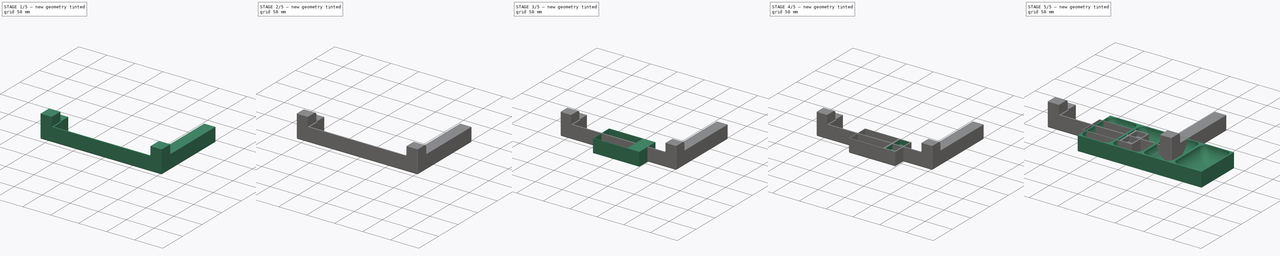
[diagram: build sequence overview — one tinted view per stage of 5, left to right]
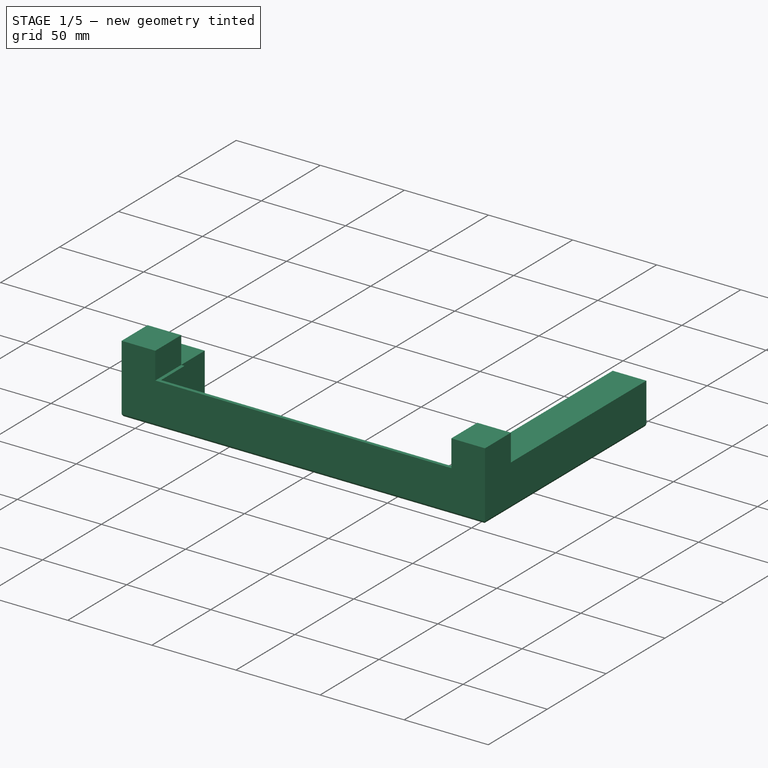
[diagram: stage 1 of 5 — iso view after this stage's code; geometry added in this stage tinted green]
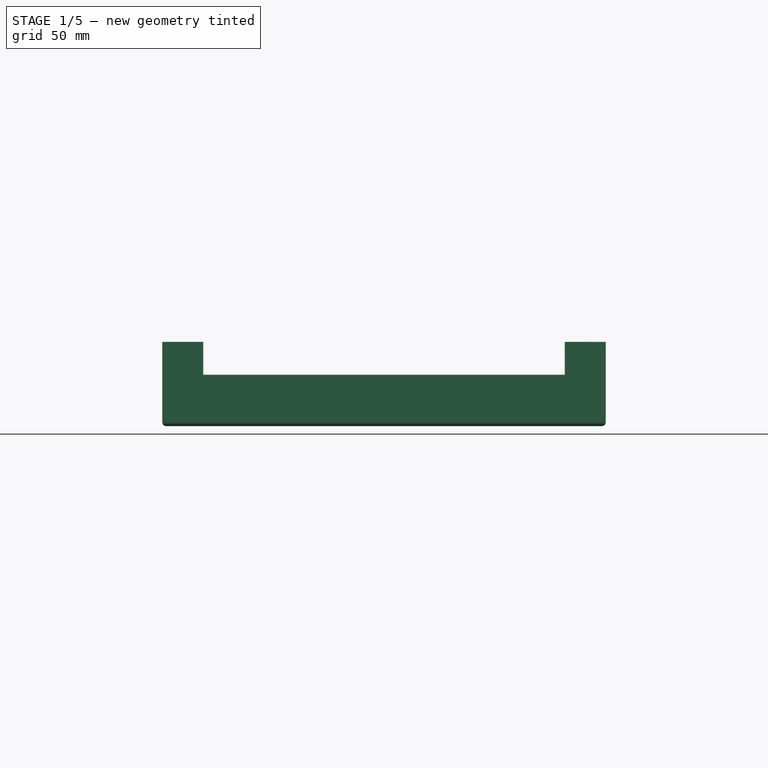
[diagram: stage 1 of 5 — front view after this stage's code; geometry added in this stage tinted green]
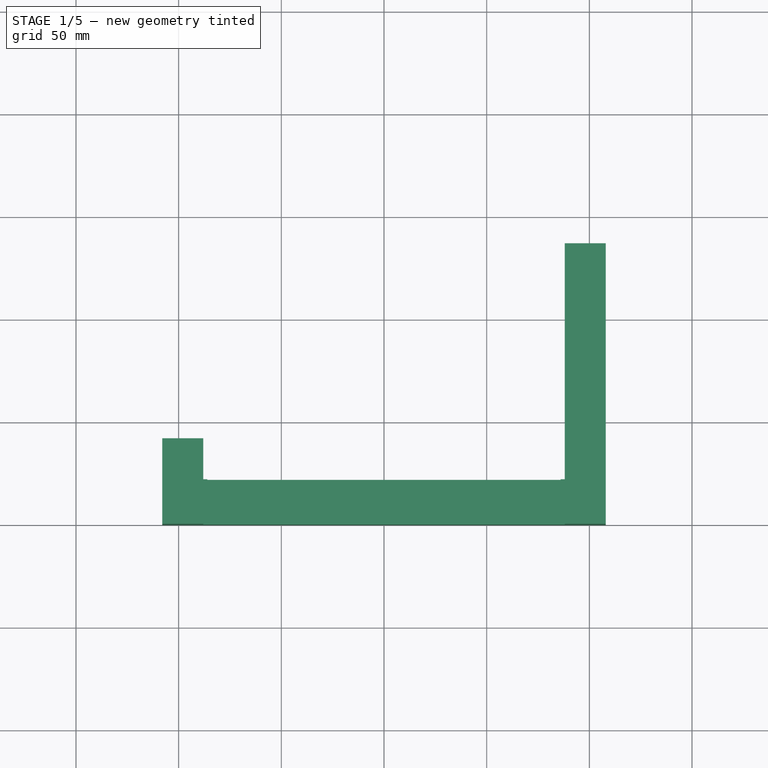
[diagram: stage 1 of 5 — top view after this stage's code; geometry added in this stage tinted green]
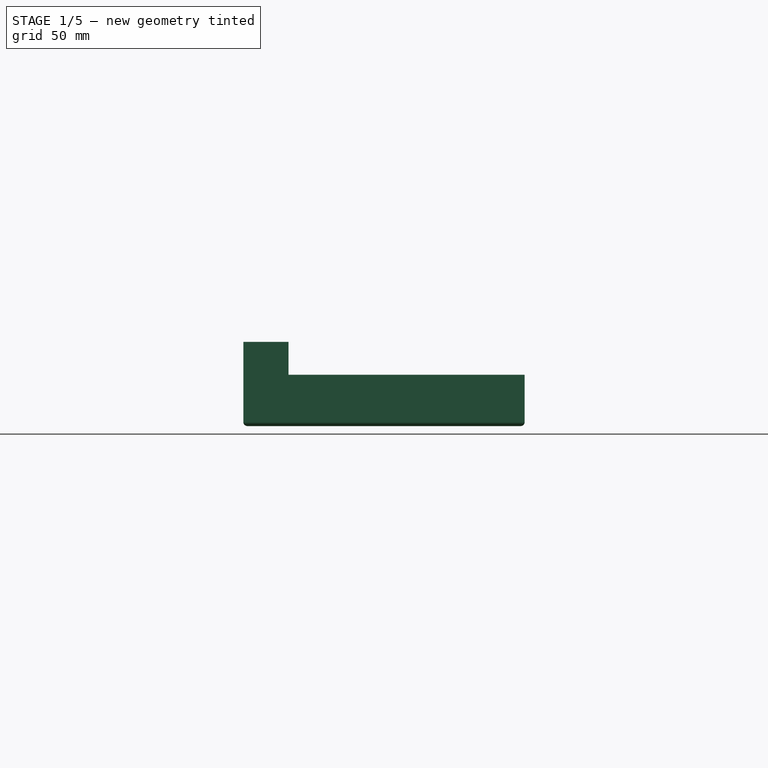
[diagram: stage 1 of 5 — right view after this stage's code; geometry added in this stage tinted green]
FCSTD DOCUMENT  (FreeCAD 0.19R24291 (Git))
Label: TammanyHall
License: All rights reserved
LicenseURL: http://en.wikipedia.org/wiki/All_rights_reserved
objects: Sketcher::SketchObject×11, PartDesign::Fillet×8, PartDesign::Pad×7, PartDesign::Plane×7, PartDesign::Pocket×4, PartDesign::Body×4, PartDesign::Thickness×2, Spreadsheet::Sheet×1, PartDesign::LinearPattern×1
note: 65 computed .brp shape members not serialized (recipe doc carries the construction recipe); baked Part::Feature solids carry a one-line shape summary decoded from their .brp

FEATURE [Sketcher::SketchObject] Sketch003
  FullyConstrained = true
  MapMode = 5
  Support = -> [XY_Plane002]
  expr: Constraints[6] = Spreadsheet.card_height
  expr: Constraints[7] = Spreadsheet.card_width
  sketch-geometry (4):
    g0: LineSegment StartX=-46 StartY=30.5 StartZ=0 EndX=46 EndY=30.5 EndZ=0
    g1: LineSegment StartX=46 StartY=30.5 StartZ=0 EndX=46 EndY=-30.5 EndZ=0
    g2: LineSegment StartX=46 StartY=-30.5 StartZ=0 EndX=-46 EndY=-30.5 EndZ=0
    g3: LineSegment StartX=-46 StartY=-30.5 StartZ=0 EndX=-46 EndY=30.5 EndZ=0
  constraints (10):
    c: Coincident(g0,g1)
    c: Coincident(g1,g2)
    c: Coincident(g2,g3)
    c: Coincident(g3,g0)
    c: Horizontal(g0)
    c: Vertical(g1)
    c: DistanceX(g0,g0) = 92
    c: DistanceY(g3,g3) = 61
    c: Symmetric(g2,g1,g-2)
    c: Symmetric(g0,g2,g-1)
FEATURE [PartDesign::Pad] Pad002
  Direction = (1,1,1)
  Length = 25
  Length2 = 100
  Profile = -> Sketch003
  Type = 0
  expr: Length = Spreadsheet.faction_height
FEATURE [PartDesign::Thickness] Thickness001
  Base = -> Pad002 [Face6]
  BaseFeature = -> Pad002
  Intersection = false
  Join = 0
  Mode = 0
  SupportTransform = false
  Value = 1
FEATURE [PartDesign::Plane] DatumPlane001
  Length = 107.711
  MapMode = 5
  Placement = pos=(0,30.5,0) rot=(1,0,0;1.5708rad)
  ResizeMode = 0
  Support = -> [Thickness001]
  Width = 63.7113
FEATURE [Sketcher::SketchObject] Sketch004
  FullyConstrained = true
  MapMode = 5
  Placement = pos=(0,30.5,0) rot=(1,0,0;1.5708rad)
  Support = -> [DatumPlane001]
  expr: Constraints[43] = Spreadsheet.card_height
  expr: Constraints[44] = 10
  expr: Constraints[66] = Spreadsheet.card_box_height - Spreadsheet.all_cards_thickness
  sketch-geometry (24):
    g0: LineSegment StartX=46 StartY=0 StartZ=0 EndX=-46 EndY=0 EndZ=0
    g1: LineSegment StartX=-46 StartY=0 StartZ=0 EndX=-46 EndY=16 EndZ=0
    g2: LineSegment StartX=-46 StartY=16 StartZ=0 EndX=-41 EndY=16 EndZ=0
    g3: LineSegment StartX=-41 StartY=16 StartZ=0 EndX=-41 EndY=6 EndZ=0
    g4: LineSegment StartX=-41 StartY=6 StartZ=0 EndX=-35 EndY=6 EndZ=0
    g5: LineSegment StartX=-35 StartY=6 StartZ=0 EndX=-35 EndY=16 EndZ=0
    g6: LineSegment StartX=-35 StartY=16 StartZ=0 EndX=-29 EndY=16 EndZ=0
    g7: LineSegment StartX=-29 StartY=16 StartZ=0 EndX=-29 EndY=6 EndZ=0
    g8: LineSegment StartX=-29 StartY=6 StartZ=0 EndX=-23 EndY=6 EndZ=0
    g9: LineSegment StartX=-23 StartY=6 StartZ=0 EndX=-23 EndY=16 EndZ=0
    g10: LineSegment StartX=-23 StartY=16 StartZ=0 EndX=-17 EndY=16 EndZ=0
    g11: LineSegment StartX=-17 StartY=16 StartZ=0 EndX=-17 EndY=6 EndZ=0
    g12: LineSegment StartX=-17 StartY=6 StartZ=0 EndX=-11 EndY=6 EndZ=0
    g13: LineSegment StartX=-11 StartY=6 StartZ=0 EndX=-11 EndY=16 EndZ=0
    g14: LineSegment StartX=-11 StartY=16 StartZ=0 EndX=-5 EndY=16 EndZ=0
    g15: LineSegment StartX=-5 StartY=16 StartZ=0 EndX=-5 EndY=6 EndZ=0
    g16: LineSegment StartX=-5 StartY=6 StartZ=0 EndX=1 EndY=6 EndZ=0
    g17: LineSegment StartX=1 StartY=6 StartZ=0 EndX=1 EndY=16 EndZ=0
    g18: LineSegment StartX=1 StartY=16 StartZ=0 EndX=7 EndY=16 EndZ=0
    g19: LineSegment StartX=7 StartY=16 StartZ=0 EndX=7 EndY=6 EndZ=0
    g20: LineSegment StartX=7 StartY=6 StartZ=0 EndX=13 EndY=6 EndZ=0
    g21: LineSegment StartX=13 StartY=6 StartZ=0 EndX=13 EndY=16 EndZ=0
    g22: LineSegment StartX=13 StartY=16 StartZ=0 EndX=18.2872 EndY=16 EndZ=0
    g23: LineSegment StartX=18.2872 StartY=16 StartZ=0 EndX=46 EndY=0 EndZ=0
  constraints (71):
    c: PointOnObject(g0,g-1)
    c: Coincident(g0,g1)
    c: Vertical(g1)
    c: Coincident(g1,g2)
    c: Horizontal(g2)
    c: Coincident(g2,g3)
    c: Vertical(g3)
    c: Coincident(g3,g4)
    c: Coincident(g4,g5)
    c: Vertical(g5)
    c: Coincident(g5,g6)
    c: Horizontal(g6)
    c: Coincident(g6,g7)
    c: Vertical(g7)
    c: Coincident(g7,g8)
    c: Coincident(g8,g9)
    c: Vertical(g9)
    c: Coincident(g9,g10)
    c: Horizontal(g10)
    c: Coincident(g10,g11)
    c: Vertical(g11)
    c: Coincident(g11,g12)
    c: Horizontal(g12)
    c: Coincident(g12,g13)
    c: Vertical(g13)
    c: Coincident(g13,g14)
    c: Horizontal(g14)
    c: Coincident(g14,g15)
    c: Vertical(g15)
    c: Coincident(g15,g16)
    c: Horizontal(g16)
    c: Coincident(g16,g17)
    c: Vertical(g17)
    c: Coincident(g17,g18)
    c: Coincident(g18,g19)
    c: Coincident(g19,g20)
    c: Horizontal(g20)
    c: Coincident(g20,g21)
    c: Vertical(g21)
    c: Coincident(g21,g22)
    c: Horizontal(g22)
    c: Coincident(g22,g23)
    c: Coincident(g23,g0)
    c: DistanceX(g0,g0) = 92
    c: DistanceY(g3,g3) = 10
    c: Equal(g3,g5)
    c: Equal(g5,g7)
    c: Equal(g7,g9)
    c: Equal(g9,g11)
    c: Equal(g11,g13)
    c: Equal(g13,g15)
    c: Equal(g15,g17)
    c: Equal(g17,g19)
    c: Equal(g19,g21)
    c: DistanceX(g4,g4) = 6
    c: Equal(g6,g8)
    c: Equal(g8,g10)
    c: Equal(g10,g12)
    c: Equal(g12,g14)
    c: Equal(g14,g16)
    c: Equal(g16,g18)
    c: Equal(g18,g20)
    c: Vertical(g19)
    c: Horizontal(g18)
    c: Horizontal(g4)
    c: Horizontal(g8)
    c: DistanceY(g0,g1) = 16
    c: DistanceX(g2,g2) = 5
    c: Symmetric(g0,g0,g-2)
    c: Angle(g23,g0) = 0.523599
    c: Equal(g6,g4)
FEATURE [PartDesign::Pad] Pad003
  BaseFeature = -> Thickness001
  Direction = (1,1,1)
  Length = 61
  Length2 = 100
  Profile = -> Sketch004
  Type = 0
  expr: Length = Spreadsheet.card_width
FEATURE [Sketcher::SketchObject] Sketch006
  FullyConstrained = true
  MapMode = 5
  Support = -> [XY_Plane003]
  expr: Constraints[22] = Spreadsheet.board_lock_length
  expr: Constraints[16] = Spreadsheet.board_lock_short
  expr: Constraints[17] = Spreadsheet.box_width
  expr: Constraints[19] = Spreadsheet.board_lock_short - Spreadsheet.board_remainder
  sketch-geometry (8):
    g0: LineSegment StartX=-108 StartY=42 StartZ=0 EndX=-88 EndY=42 EndZ=0
    g1: LineSegment StartX=-88 StartY=42 StartZ=0 EndX=-88 EndY=22 EndZ=0
    g2: LineSegment StartX=-88 StartY=22 StartZ=0 EndX=88 EndY=22 EndZ=0
    g3: LineSegment StartX=88 StartY=22 StartZ=0 EndX=88 EndY=137 EndZ=0
    g4: LineSegment StartX=88 StartY=137 StartZ=0 EndX=108 EndY=137 EndZ=0
    g5: LineSegment StartX=108 StartY=137 StartZ=0 EndX=108 EndY=0 EndZ=0
    g6: LineSegment StartX=108 StartY=0 StartZ=0 EndX=-108 EndY=0 EndZ=0
    g7: LineSegment StartX=-108 StartY=0 StartZ=0 EndX=-108 EndY=42 EndZ=0
  constraints (23):
    c: Horizontal(g0)
    c: Coincident(g0,g1)
    c: Vertical(g1)
    c: Coincident(g1,g2)
    c: Horizontal(g2)
    c: Coincident(g2,g3)
    c: Coincident(g3,g4)
    c: Horizontal(g4)
    c: Coincident(g4,g5)
    c: Vertical(g5)
    c: Coincident(g5,g6)
    c: Coincident(g6,g7)
    c: Coincident(g7,g0)
    c: Vertical(g7)
    c: Vertical(g3)
    c: Equal(g0,g4)
    c: DistanceY(g7,g7) = 42
    c: DistanceX(g6,g6) = 216
    c: DistanceX(g0,g0) = 20
    c: DistanceY(g1,g1) = 20
    c: Symmetric(g6,g5,g-2)
    c: PointOnObject(g-1,g6)
    c: DistanceY(g5,g5) = 137
FEATURE [PartDesign::Pad] Pad004
  Direction = (1,1,1)
  Length = 25
  Length2 = 100
  Profile = -> Sketch006
  Type = 0
  expr: Length = Spreadsheet.card_box_height
FEATURE [PartDesign::Plane] DatumPlane004
  Length = 253.412
  MapMode = 5
  Placement = pos=(0,0,25) rot=(0,0,1;0rad)
  ResizeMode = 0
  Support = -> [Pad004]
  Width = 199.412
FEATURE [Sketcher::SketchObject] Sketch007
  FullyConstrained = true
  MapMode = 5
  Placement = pos=(0,0,25) rot=(0,0,1;0rad)
  Support = -> [DatumPlane004]
  expr: Constraints[20] = Spreadsheet.box_width
  expr: Constraints[17] = Spreadsheet.board_remainder
  sketch-geometry (8):
    g0: LineSegment StartX=-108 StartY=22 StartZ=0 EndX=-88 EndY=22 EndZ=0
    g1: LineSegment StartX=-88 StartY=22 StartZ=0 EndX=-88 EndY=0 EndZ=0
    g2: LineSegment StartX=-88 StartY=0 StartZ=0 EndX=-108 EndY=0 EndZ=0
    g3: LineSegment StartX=-108 StartY=0 StartZ=0 EndX=-108 EndY=22 EndZ=0
    g4: LineSegment StartX=88 StartY=22 StartZ=0 EndX=108 EndY=22 EndZ=0
    g5: LineSegment StartX=108 StartY=22 StartZ=0 EndX=108 EndY=0 EndZ=0
    g6: LineSegment StartX=108 StartY=0 StartZ=0 EndX=88 EndY=0 EndZ=0
    g7: LineSegment StartX=88 StartY=0 StartZ=0 EndX=88 EndY=22 EndZ=0
  constraints (23):
    c: Coincident(g0,g1)
    c: Coincident(g1,g2)
    c: Coincident(g2,g3)
    c: Coincident(g3,g0)
    c: Horizontal(g0)
    c: Horizontal(g2)
    c: Vertical(g1)
    c: Vertical(g3)
    c: Coincident(g4,g5)
    c: Coincident(g5,g6)
    c: Coincident(g6,g7)
    c: Coincident(g7,g4)
    c: Horizontal(g4)
    c: Horizontal(g6)
    c: Vertical(g5)
    c: Vertical(g7)
    c: PointOnObject(g5,g-1)
    c: DistanceY(g3,g3) = 22
    c: DistanceX(g2,g2) = 20
    c: Symmetric(g6,g1,g-2)
    c: DistanceX(g2,g5) = 216
    c: Equal(g4,g0)
    c: Equal(g1,g7)
FEATURE [PartDesign::Pad] Pad005
  BaseFeature = -> Pad004
  Direction = (1,1,1)
  Length = 16
  Length2 = 100
  Profile = -> Sketch007
  Type = 0
  expr: Length = Spreadsheet.board_width
FEATURE [PartDesign::Fillet] Fillet003
  Base = -> Pad005 [Face4]
  BaseFeature = -> Pad005
  Radius = 2
  SupportTransform = false
FEATURE [PartDesign::Body] Body001  label="PlayerTray"
  Group = -> [Sketch002,Pad001,Thickness,Fillet001,DatumPlane006,Sketch008,Pad006,DatumPlane007,Sketch009,Pocket002,Fillet005,Fillet006]
  Origin = -> Origin001
  Tip = -> Fillet006
FEATURE [PartDesign::Plane] DatumPlane008
  Length = 253.412
  MapMode = 5
  Placement = pos=(0,0,25) rot=(0,0,1;0rad)
  ResizeMode = 0
  Support = -> [Fillet003]
  Width = 199.412
FEATURE [Sketcher::SketchObject] Sketch010
  FullyConstrained = true
  MapMode = 5
  Placement = pos=(0,0,25) rot=(0,0,1;0rad)
  Support = -> [DatumPlane008]
  expr: Constraints[10] = Spreadsheet.board_remainder
  expr: Constraints[8] = Spreadsheet.box_width - 2 * Spreadsheet.board_remainder
  sketch-geometry (4):
    g0: LineSegment StartX=-86 StartY=2 StartZ=0 EndX=86 EndY=2 EndZ=0
    g1: LineSegment StartX=86 StartY=2 StartZ=0 EndX=86 EndY=22 EndZ=0
    g2: LineSegment StartX=86 StartY=22 StartZ=0 EndX=-86 EndY=22 EndZ=0
    g3: LineSegment StartX=-86 StartY=22 StartZ=0 EndX=-86 EndY=2 EndZ=0
  constraints (11):
    c: Coincident(g0,g1)
    c: Coincident(g1,g2)
    c: Coincident(g2,g3)
    c: Coincident(g3,g0)
    c: Horizontal(g2)
    c: Vertical(g1)
    c: Vertical(g3)
    c: Symmetric(g0,g0,g-2)
    c: DistanceX(g0,g0) = 172
    c: DistanceY(g3,g3) = 20
    c: DistanceY(g-1,g2) = 22
FEATURE [PartDesign::Pocket] Pocket003
  BaseFeature = -> Fillet003
  Length = 16
  Length2 = 100
  Profile = -> Sketch010
  Type = 0
  expr: Length = Spreadsheet.board_width
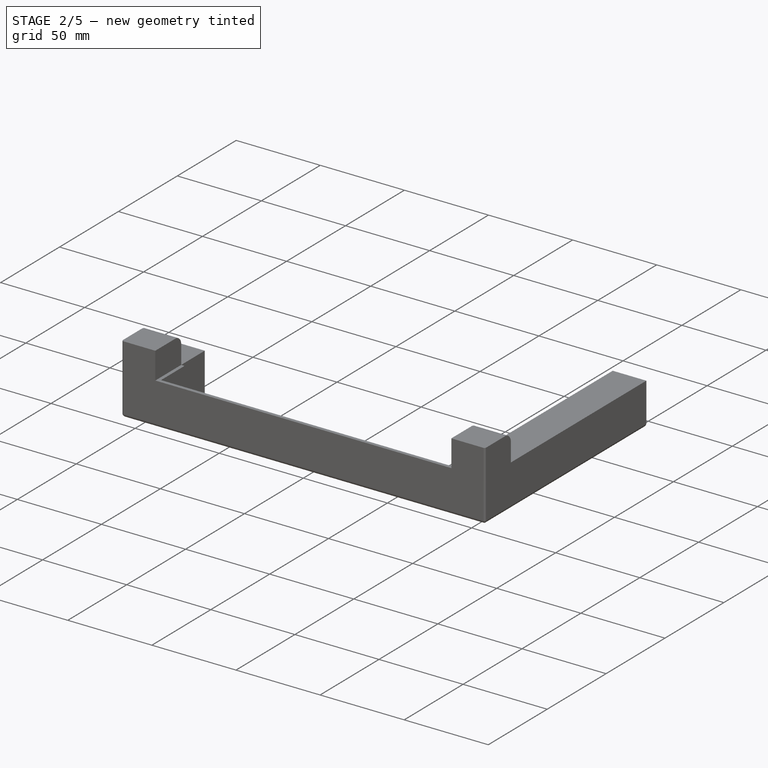
[diagram: stage 2 of 5 — iso view after this stage's code; geometry added in this stage tinted green]
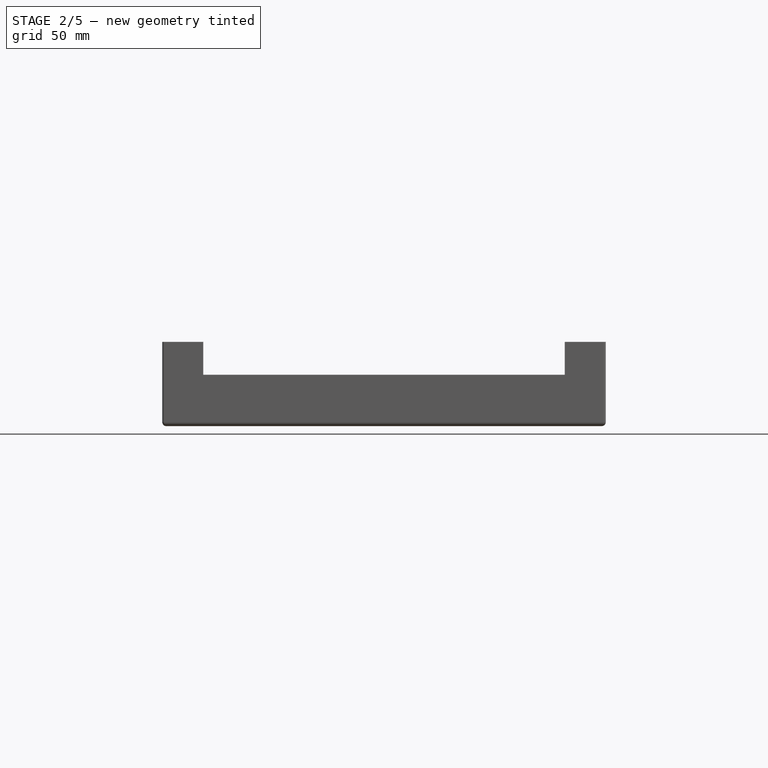
[diagram: stage 2 of 5 — front view after this stage's code; geometry added in this stage tinted green]
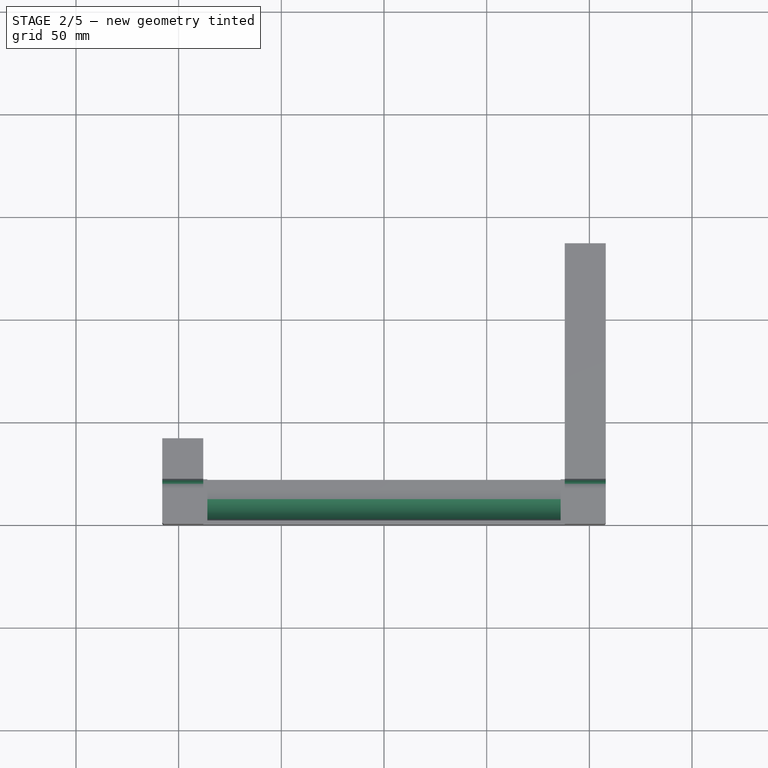
[diagram: stage 2 of 5 — top view after this stage's code; geometry added in this stage tinted green]
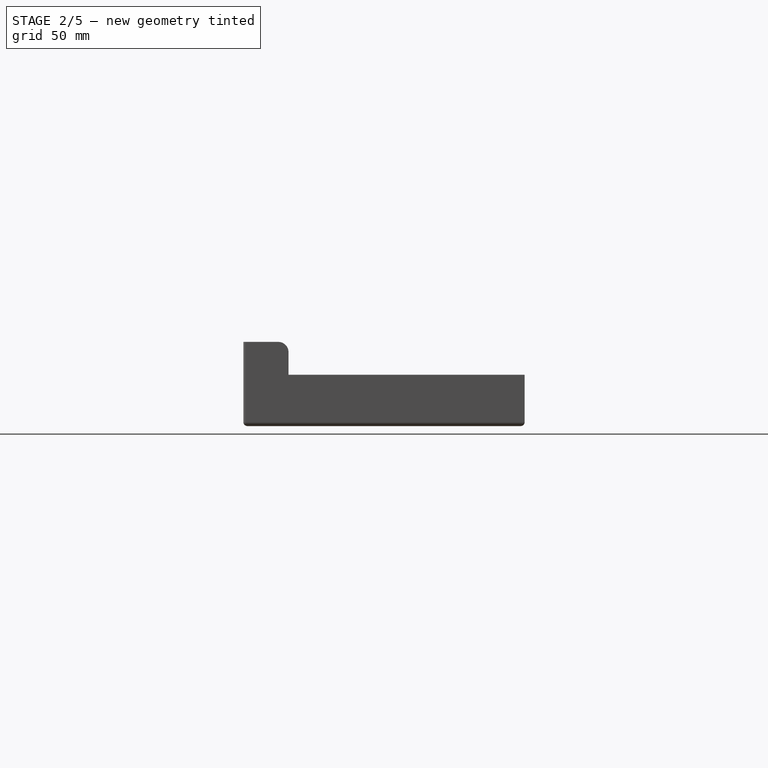
[diagram: stage 2 of 5 — right view after this stage's code; geometry added in this stage tinted green]
FEATURE [PartDesign::Fillet] Fillet007
  Base = -> Pocket003 [Edge67]
  BaseFeature = -> Pocket003
  Radius = 15
  SupportTransform = false
FEATURE [PartDesign::Fillet] Fillet008
  Base = -> Fillet007 [Edge45,Edge64]
  BaseFeature = -> Fillet007
  Radius = 5
  SupportTransform = false
FEATURE [PartDesign::Fillet] Fillet009
  Base = -> Fillet008 [Edge59,Edge26,Edge20,Edge29]
  BaseFeature = -> Fillet008
  Radius = 1
  SupportTransform = false
FEATURE [PartDesign::Body] Body003  label="BoardFrame"
  Group = -> [Sketch006,Pad004,DatumPlane004,Sketch007,Pad005,Fillet003,DatumPlane008,Sketch010,Pocket003,Fillet007,Fillet008,Fillet009]
  Origin = -> Origin003
  Tip = -> Fillet009
FEATURE [PartDesign::Body] Body002  label="OfficeCardTray"
  Group = -> [Sketch003,Pad002,Thickness001,DatumPlane001,Sketch004,Pad003,Sketch005,Pocket001,DatumPlane003]
  Origin = -> Origin002
  Tip = -> Pocket001
FEATURE [Sketcher::SketchObject] Sketch005
  FullyConstrained = true
  MapMode = 5
  Placement = pos=(-46,0,0) rot=(0.57735,0.57735,0.57735;2.0944rad)
  Support = -> [DatumPlane003]
  expr: Constraints[8] = Spreadsheet.card_box_height
  expr: Constraints[9] = Spreadsheet.card_width - 20
  sketch-geometry (4):
    g0: LineSegment StartX=-20.5 StartY=0 StartZ=0 EndX=20.5 EndY=0 EndZ=0
    g1: LineSegment StartX=20.5 StartY=0 StartZ=0 EndX=20.5 EndY=25 EndZ=0
    g2: LineSegment StartX=20.5 StartY=25 StartZ=0 EndX=-20.5 EndY=25 EndZ=0
    g3: LineSegment StartX=-20.5 StartY=25 StartZ=0 EndX=-20.5 EndY=0 EndZ=0
  constraints (11):
    c: Coincident(g0,g1)
    c: Coincident(g1,g2)
    c: Coincident(g2,g3)
    c: Coincident(g3,g0)
    c: Horizontal(g2)
    c: Vertical(g1)
    c: Vertical(g3)
    c: PointOnObject(g0,g-1)
    c: DistanceY(g3,g3) = 25
    c: DistanceX(g2,g2) = 41
    c: Symmetric(g0,g0,g-2)
FEATURE [PartDesign::Pocket] Pocket001
  BaseFeature = -> Pad003
  Length = 62
  Length2 = 100
  Profile = -> Sketch005
  Reversed = true
  Type = 0
  expr: Length = Spreadsheet.card_height - 30
FEATURE [PartDesign::Plane] DatumPlane003
  Length = 74.225
  MapMode = 5
  Placement = pos=(-46,0,0) rot=(0.57735,0.57735,0.57735;2.0944rad)
  ResizeMode = 0
  Support = -> [Pocket001]
  Width = 61.225
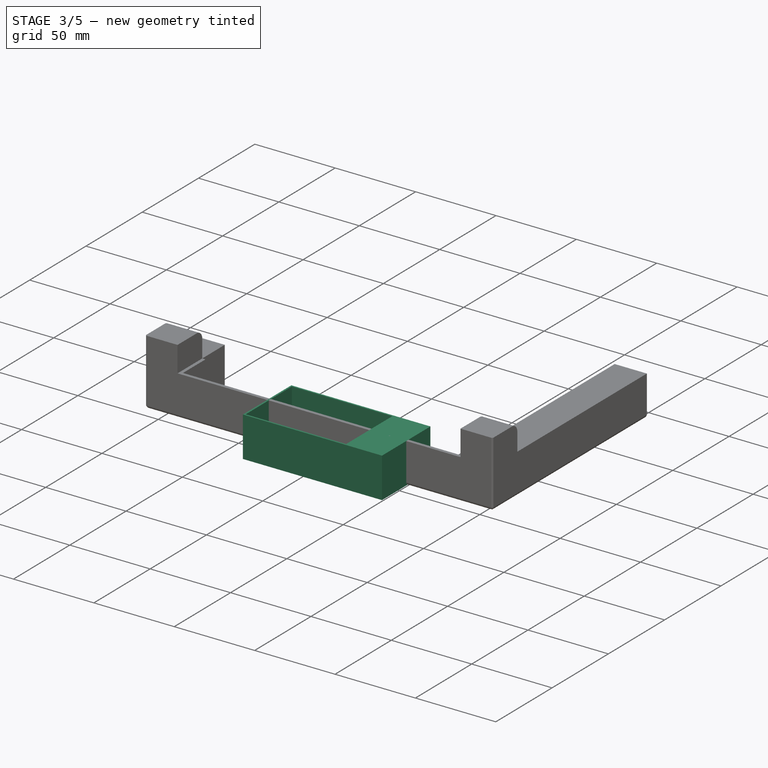
[diagram: stage 3 of 5 — iso view after this stage's code; geometry added in this stage tinted green]
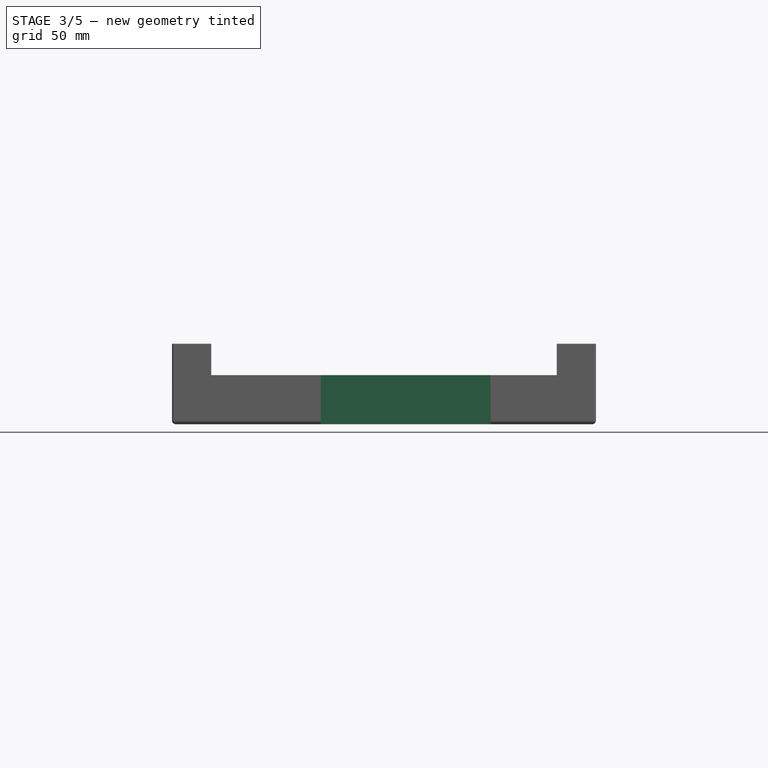
[diagram: stage 3 of 5 — front view after this stage's code; geometry added in this stage tinted green]
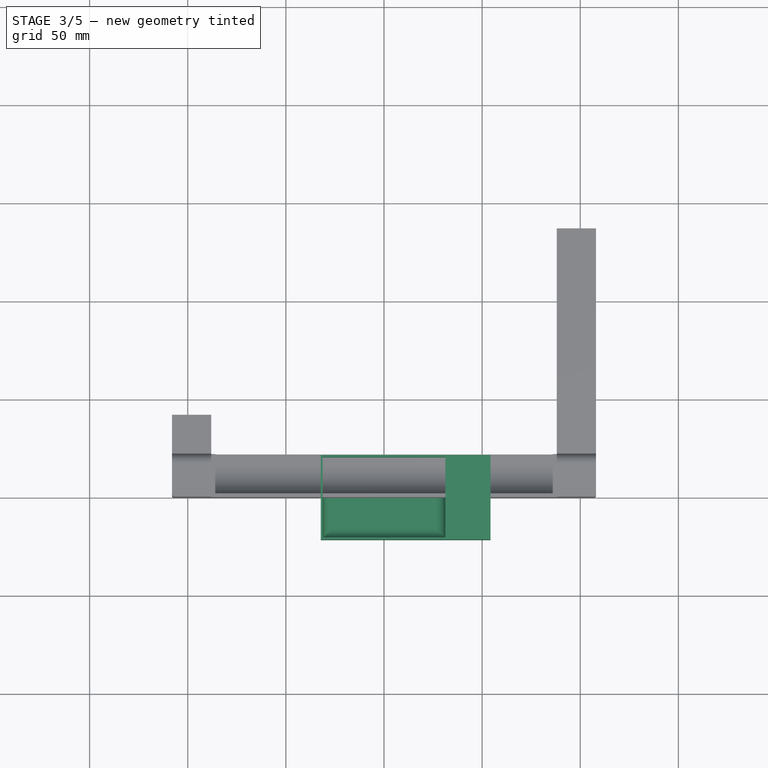
[diagram: stage 3 of 5 — top view after this stage's code; geometry added in this stage tinted green]
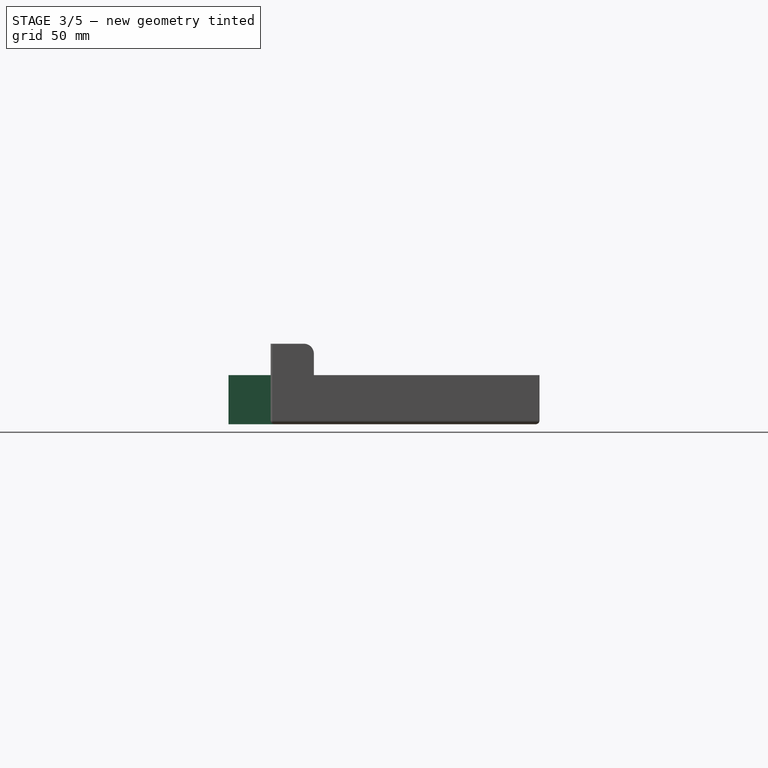
[diagram: stage 3 of 5 — right view after this stage's code; geometry added in this stage tinted green]
FEATURE [PartDesign::Body] Body  label="FactionTrays"
  Group = -> [Sketch,Pad,DatumPlane,Sketch001,Pocket,Fillet,LinearPattern]
  Origin = -> Origin
  Tip = -> LinearPattern
FEATURE [Sketcher::SketchObject] Sketch002
  FullyConstrained = true
  MapMode = 5
  Support = -> [XY_Plane001]
  expr: Constraints[6] = Spreadsheet.player_width * 1.5
  expr: Constraints[9] = Spreadsheet.player_width
  sketch-geometry (4):
    g0: LineSegment StartX=-32.25 StartY=21.5 StartZ=0 EndX=32.25 EndY=21.5 EndZ=0
    g1: LineSegment StartX=32.25 StartY=21.5 StartZ=0 EndX=32.25 EndY=-21.5 EndZ=0
    g2: LineSegment StartX=32.25 StartY=-21.5 StartZ=0 EndX=-32.25 EndY=-21.5 EndZ=0
    g3: LineSegment StartX=-32.25 StartY=-21.5 StartZ=0 EndX=-32.25 EndY=21.5 EndZ=0
  constraints (10):
    c: Coincident(g0,g1)
    c: Coincident(g1,g2)
    c: Coincident(g2,g3)
    c: Coincident(g3,g0)
    c: Horizontal(g2)
    c: Vertical(g1)
    c: DistanceX(g0,g0) = 64.5
    c: Symmetric(g0,g0,g-2)
    c: Symmetric(g0,g2,g-1)
    c: DistanceY(g3,g3) = 43
FEATURE [PartDesign::Pad] Pad001
  Direction = (1,1,1)
  Length = 25
  Length2 = 100
  Profile = -> Sketch002
  Type = 0
  expr: Length = Spreadsheet.player_height
FEATURE [PartDesign::Thickness] Thickness
  Base = -> Pad001 [Face6]
  BaseFeature = -> Pad001
  Intersection = false
  Join = 0
  Mode = 0
  Reversed = true
  SupportTransform = false
  Value = 1
FEATURE [PartDesign::Fillet] Fillet001
  Base = -> Thickness [Face11]
  BaseFeature = -> Thickness
  Radius = 5
  SupportTransform = false
FEATURE [PartDesign::Plane] DatumPlane006
  Length = 60
  MapMode = 5
  Placement = pos=(32.25,0,0) rot=(0.57735,0.57735,0.57735;2.0944rad)
  ResizeMode = 0
  Support = -> [Fillet001]
  Width = 60
FEATURE [Sketcher::SketchObject] Sketch008
  FullyConstrained = true
  MapMode = 5
  Placement = pos=(32.25,0,0) rot=(0.57735,0.57735,0.57735;2.0944rad)
  Support = -> [DatumPlane006]
  expr: Constraints[9] = Spreadsheet.player_height
  expr: Constraints[8] = Spreadsheet.player_width
  sketch-geometry (4):
    g0: LineSegment StartX=-21.5 StartY=25 StartZ=0 EndX=21.5 EndY=25 EndZ=0
    g1: LineSegment StartX=21.5 StartY=25 StartZ=0 EndX=21.5 EndY=0 EndZ=0
    g2: LineSegment StartX=21.5 StartY=0 StartZ=0 EndX=-21.5 EndY=0 EndZ=0
    g3: LineSegment StartX=-21.5 StartY=0 StartZ=0 EndX=-21.5 EndY=25 EndZ=0
  constraints (11):
    c: Coincident(g0,g1)
    c: Coincident(g1,g2)
    c: Coincident(g2,g3)
    c: Coincident(g3,g0)
    c: Horizontal(g0)
    c: Vertical(g1)
    c: Vertical(g3)
    c: PointOnObject(g1,g-1)
    c: DistanceX(g0,g0) = 43
    c: DistanceY(g3,g3) = 25
    c: Symmetric(g2,g1,g-2)
FEATURE [PartDesign::Pad] Pad006
  BaseFeature = -> Fillet001
  Direction = (1,1,1)
  Length = 22
  Length2 = 100
  Profile = -> Sketch008
  Type = 0
  expr: Length = Spreadsheet.slander_box_width + 2 * Spreadsheet.padding
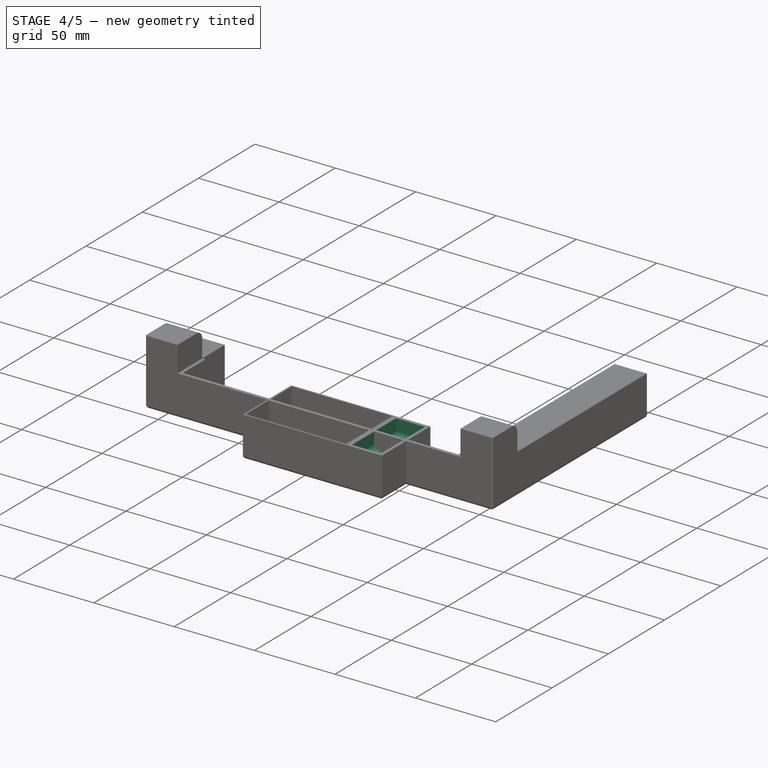
[diagram: stage 4 of 5 — iso view after this stage's code; geometry added in this stage tinted green]
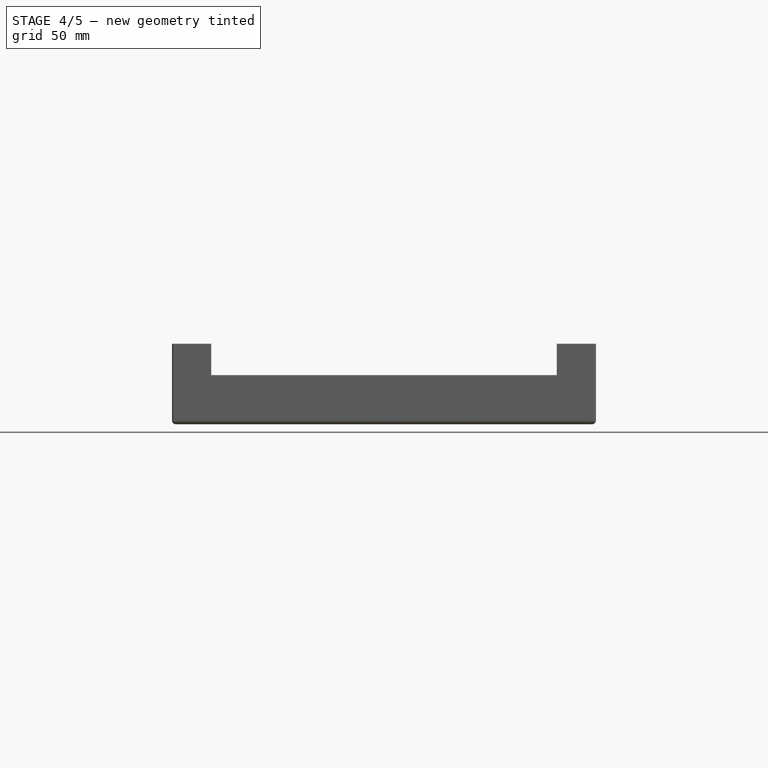
[diagram: stage 4 of 5 — front view after this stage's code; geometry added in this stage tinted green]
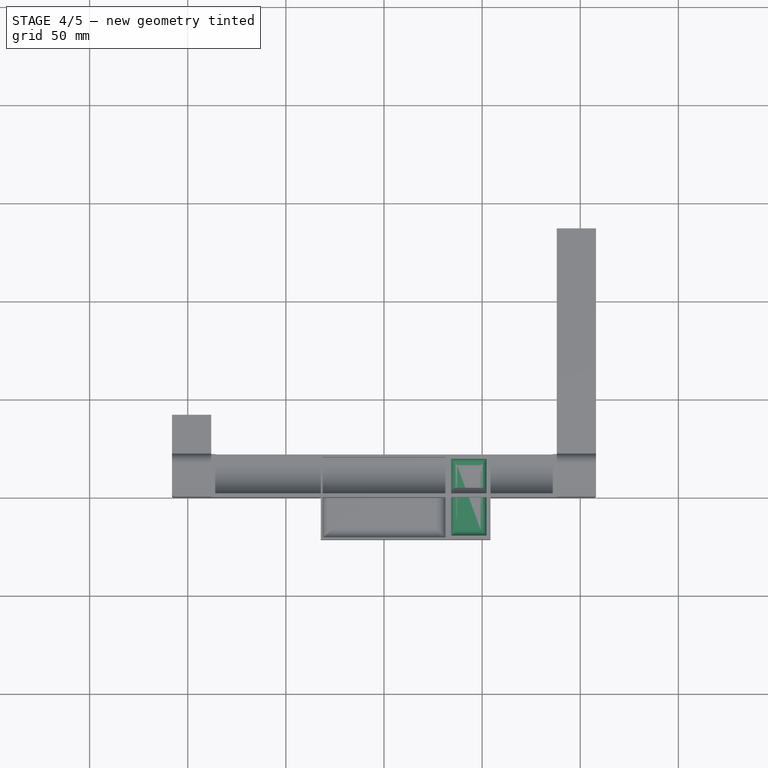
[diagram: stage 4 of 5 — top view after this stage's code; geometry added in this stage tinted green]
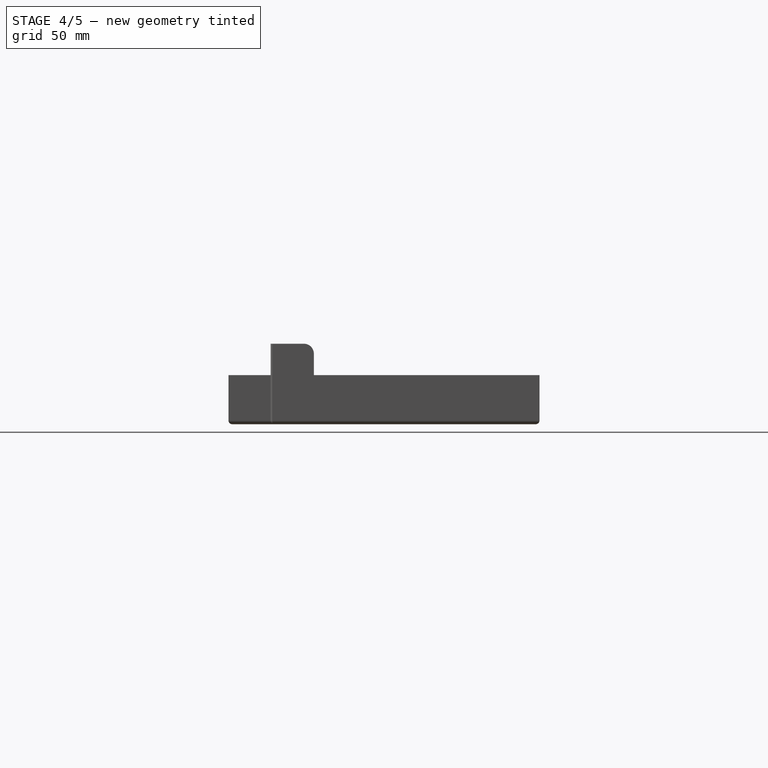
[diagram: stage 4 of 5 — right view after this stage's code; geometry added in this stage tinted green]
FEATURE [PartDesign::Plane] DatumPlane007
  Length = 99.6529
  MapMode = 5
  Placement = pos=(0,0,25) rot=(0,0,1;0rad)
  ResizeMode = 0
  Support = -> [Pad006]
  Width = 63.1529
FEATURE [Sketcher::SketchObject] Sketch009
  FullyConstrained = true
  MapMode = 5
  Placement = pos=(0,0,25) rot=(0,0,1;0rad)
  Support = -> [DatumPlane007]
  expr: Constraints[9] = 1.5 * Spreadsheet.player_width / 2 + Spreadsheet.padding
  expr: Constraints[8] = Spreadsheet.player_width - 2 * Spreadsheet.padding
  expr: Constraints[7] = Spreadsheet.slander_box_width
  sketch-geometry (4):
    g0: LineSegment StartX=34.25 StartY=19.5 StartZ=0 EndX=52.25 EndY=19.5 EndZ=0
    g1: LineSegment StartX=52.25 StartY=19.5 StartZ=0 EndX=52.25 EndY=-19.5 EndZ=0
    g2: LineSegment StartX=52.25 StartY=-19.5 StartZ=0 EndX=34.25 EndY=-19.5 EndZ=0
    g3: LineSegment StartX=34.25 StartY=-19.5 StartZ=0 EndX=34.25 EndY=19.5 EndZ=0
  constraints (11):
    c: Coincident(g0,g1)
    c: Coincident(g1,g2)
    c: Coincident(g2,g3)
    c: Coincident(g3,g0)
    c: Horizontal(g0)
    c: Horizontal(g2)
    c: Vertical(g1)
    c: DistanceX(g0,g0) = 18
    c: DistanceY(g3,g3) = 39
    c: DistanceX(g-1,g2) = 34.25
    c: Symmetric(g2,g0,g-1)
FEATURE [PartDesign::Pocket] Pocket002
  BaseFeature = -> Pad006
  Length = 10
  Length2 = 100
  Profile = -> Sketch009
  Type = 0
  expr: Length = Spreadsheet.slander_box_depth
FEATURE [PartDesign::Fillet] Fillet005
  Base = -> Pocket002 [Face24]
  BaseFeature = -> Pocket002
  Radius = 3
  SupportTransform = false
FEATURE [PartDesign::Fillet] Fillet006
  Base = -> Fillet005 [Face23,Face15]
  BaseFeature = -> Fillet005
  Radius = 2
  SupportTransform = false
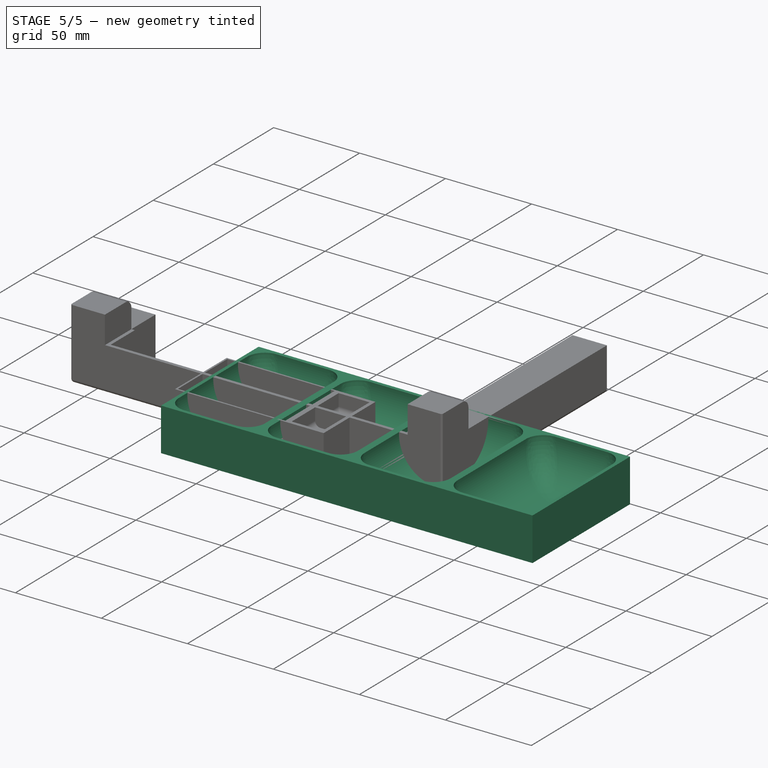
[diagram: stage 5 of 5 — iso view after this stage's code; geometry added in this stage tinted green]
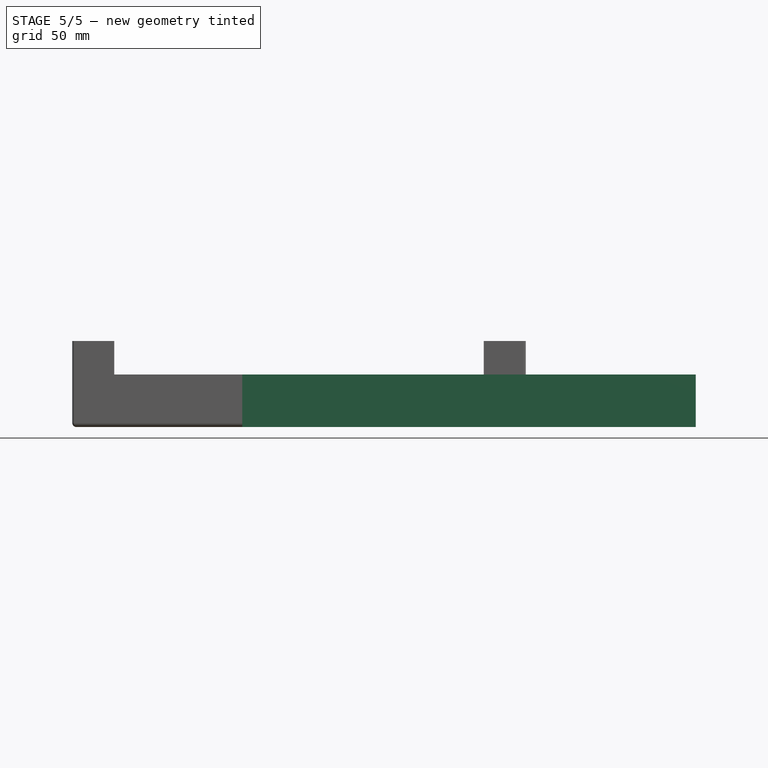
[diagram: stage 5 of 5 — front view after this stage's code; geometry added in this stage tinted green]
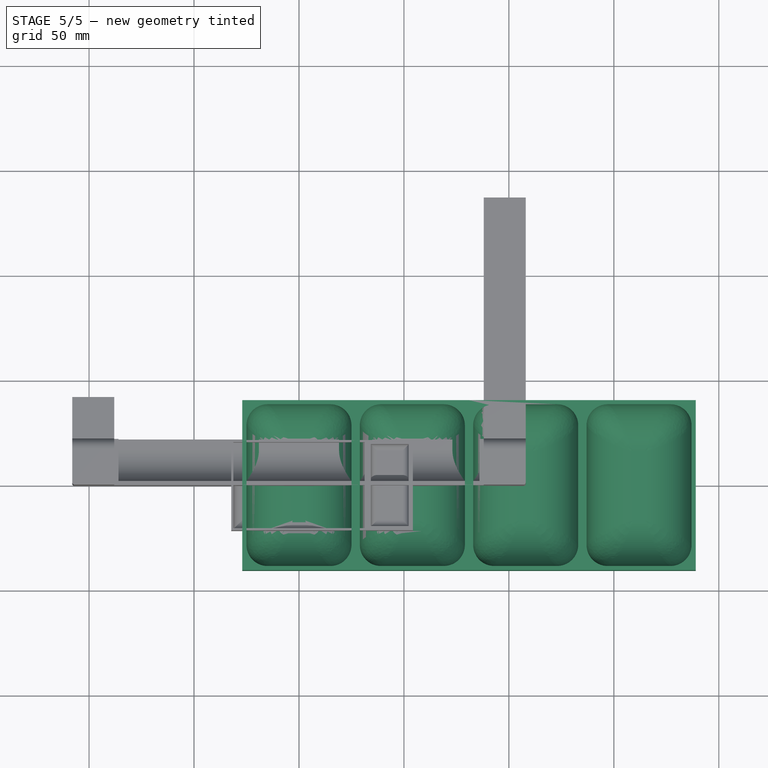
[diagram: stage 5 of 5 — top view after this stage's code; geometry added in this stage tinted green]
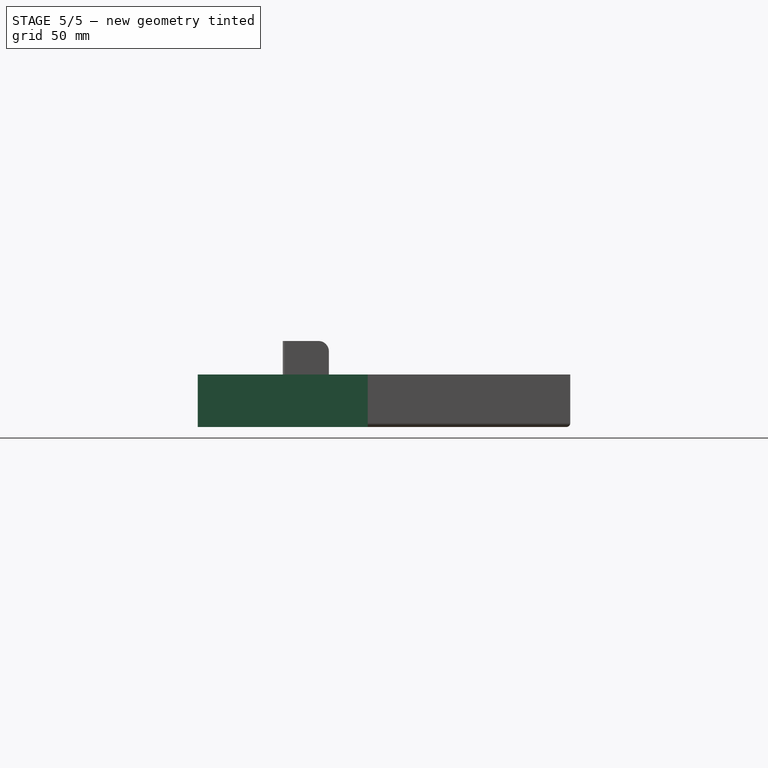
[diagram: stage 5 of 5 — right view after this stage's code; geometry added in this stage tinted green]
FEATURE [Spreadsheet::Sheet] Spreadsheet
  cells = A1=name; B1=value; A2=padding; B2(padding)=2; A3=box_width; B3(box_width)=216; A4=box_length; B4(box_length)=305; A5=box_height; B5(box_height)=26; C5=with board; A6=faction_width; B6(faction_width)=54; A7=faction_height; B7(faction_height)=25; A8=board_width; B8(board_width)=16; A9=player_width; B9(player_width)=43; A10=player_height; B10(player_height)=25; A11=card_width; B11(card_width)=61; A12=card_height; B12(card_height)=92; A13=all_cards_thickness; B13(all_cards_thickness)=9; A14=card_box_height; B14(card_box_height)=25; A15=board_lock_length; B15(board_lock_length)=137; A16=board_remainder; B16(board_remainder)=22; A17=slander_box_width; B17(slander_box_width)=18; A18=slander_box_depth; B18(slander_box_depth)=10; A19=board_lock_short; B19(board_lock_short)=42
FEATURE [Sketcher::SketchObject] Sketch
  FullyConstrained = true
  MapMode = 5
  Support = -> [XY_Plane]
  expr: Constraints[6] = Spreadsheet.faction_width
  expr: Constraints[7] = Spreadsheet.faction_width * 1.5
  sketch-geometry (4):
    g0: LineSegment StartX=-27 StartY=40.5 StartZ=0 EndX=27 EndY=40.5 EndZ=0
    g1: LineSegment StartX=27 StartY=40.5 StartZ=0 EndX=27 EndY=-40.5 EndZ=0
    g2: LineSegment StartX=27 StartY=-40.5 StartZ=0 EndX=-27 EndY=-40.5 EndZ=0
    g3: LineSegment StartX=-27 StartY=-40.5 StartZ=0 EndX=-27 EndY=40.5 EndZ=0
  constraints (10):
    c: Coincident(g0,g1)
    c: Coincident(g1,g2)
    c: Coincident(g2,g3)
    c: Coincident(g3,g0)
    c: Horizontal(g2)
    c: Vertical(g1)
    c: DistanceX(g0,g0) = 54
    c: DistanceY(g3,g3) = 81
    c: Symmetric(g0,g0,g-2)
    c: Symmetric(g0,g2,g-1)
FEATURE [PartDesign::Pad] Pad
  Direction = (1,1,1)
  Length = 25
  Length2 = 100
  Profile = -> Sketch
  Type = 0
  expr: Length = Spreadsheet.faction_height
FEATURE [PartDesign::Plane] DatumPlane
  Length = 242.454
  MapMode = 5
  Placement = pos=(0,0,25) rot=(0,0,1;0rad)
  ResizeMode = 0
  Support = -> [Pad]
  Width = 107.454
FEATURE [Sketcher::SketchObject] Sketch001
  FullyConstrained = true
  MapMode = 5
  Placement = pos=(0,0,25) rot=(0,0,1;0rad)
  Support = -> [DatumPlane]
  expr: Constraints[16] = 1.5 * Spreadsheet.faction_width - 2 * Spreadsheet.padding
  expr: Constraints[10] = Spreadsheet.faction_width - 2 * Spreadsheet.padding
  sketch-geometry (8):
    g0: LineSegment StartX=-15 StartY=38.5 StartZ=0 EndX=15 EndY=38.5 EndZ=0
    g1: LineSegment StartX=25 StartY=28.5 StartZ=0 EndX=25 EndY=-28.5 EndZ=0
    g2: LineSegment StartX=15 StartY=-38.5 StartZ=0 EndX=-15 EndY=-38.5 EndZ=0
    g3: LineSegment StartX=-25 StartY=-28.5 StartZ=0 EndX=-25 EndY=28.5 EndZ=0
    g4: ArcOfCircle CenterX=-15 CenterY=28.5 CenterZ=0 NormalX=0 NormalY=0 NormalZ=1 AngleXU=0 Radius=10 StartAngle=1.5708 EndAngle=3.14159
    g5: ArcOfCircle CenterX=15 CenterY=28.5 CenterZ=0 NormalX=0 NormalY=0 NormalZ=1 AngleXU=0 Radius=10 StartAngle=2.078e-13 EndAngle=1.5708
    g6: ArcOfCircle CenterX=15 CenterY=-28.5 CenterZ=0 NormalX=0 NormalY=0 NormalZ=1 AngleXU=0 Radius=10 StartAngle=4.71239 EndAngle=6.28319
    g7: ArcOfCircle CenterX=-15 CenterY=-28.5 CenterZ=0 NormalX=0 NormalY=0 NormalZ=1 AngleXU=0 Radius=10 StartAngle=3.14159 EndAngle=4.71239
  constraints (17):
    c: Horizontal(g2)
    c: Vertical(g1)
    c: Tangent(g0,g4) = 1.5708
    c: Tangent(g3,g4) = 1.5708
    c: Tangent(g0,g5) = 1.5708
    c: Tangent(g1,g5) = 1.5708
    c: Tangent(g1,g6) = 1.5708
    c: Tangent(g2,g6) = 1.5708
    c: Tangent(g2,g7) = 1.5708
    c: Tangent(g3,g7) = 1.5708
    c: DistanceX(g3,g1) = 50
    c: Horizontal(g0)
    c: Symmetric(g5,g4,g-2)
    c: Symmetric(g4,g7,g-1)
    c: Symmetric(g5,g6,g-1)
    c: DistanceX(g6,g1) = 10
    c: DistanceY(g2,g0) = 77
FEATURE [PartDesign::Pocket] Pocket
  BaseFeature = -> Pad
  Length = 23
  Length2 = 100
  Profile = -> Sketch001
  Type = 0
  expr: Length = Spreadsheet.faction_height - Spreadsheet.padding
FEATURE [PartDesign::Fillet] Fillet
  Base = -> Pocket [Face15]
  BaseFeature = -> Pocket
  Radius = 22
  SupportTransform = false
FEATURE [PartDesign::LinearPattern] LinearPattern
  BaseFeature = -> Fillet
  Direction = -> Sketch [H_Axis]
  Length = 162
  Occurrences = 4
  Originals = -> [Pad,Pocket,Fillet]
  expr: Length = Spreadsheet.faction_width * 3
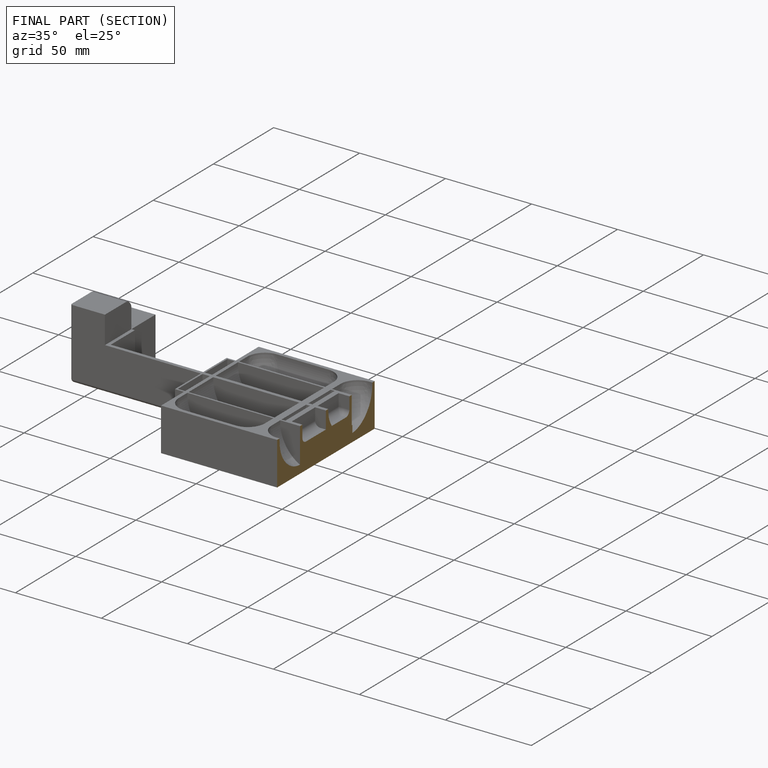
[diagram: finished part — half-section view (interior)]
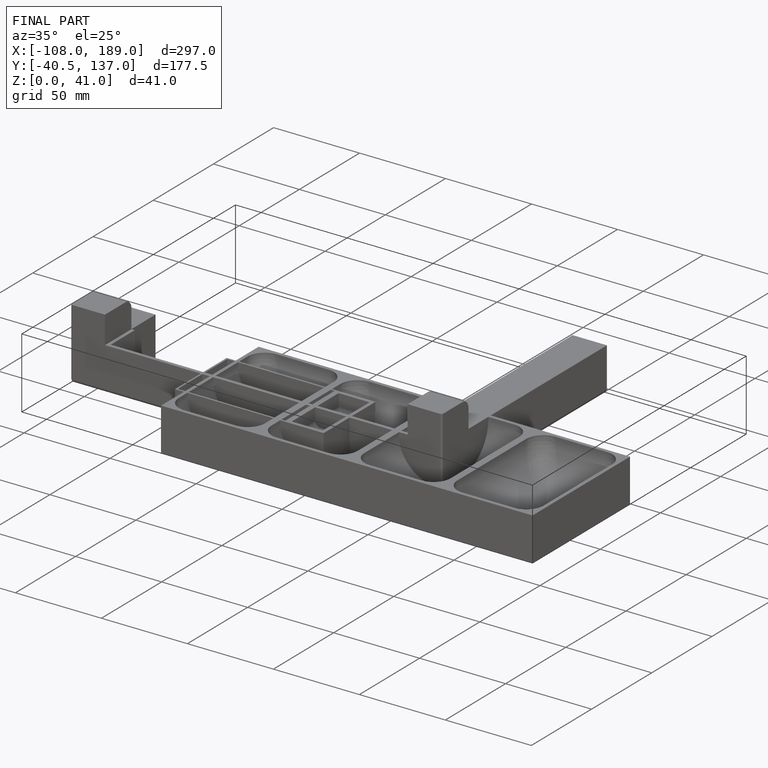
[diagram: finished part — iso view with bounding-box wireframe]
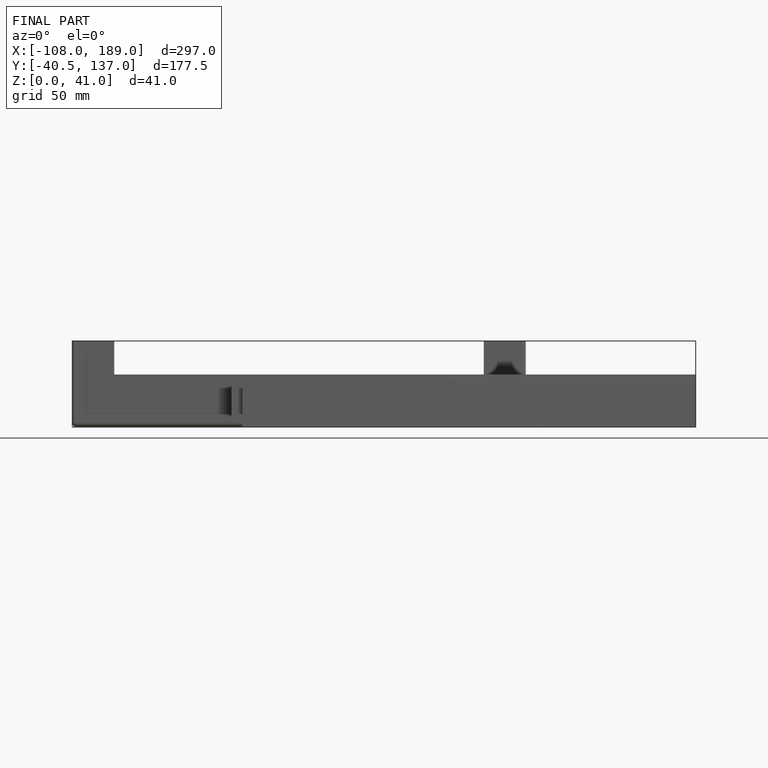
[diagram: finished part — front view with bounding-box wireframe]
